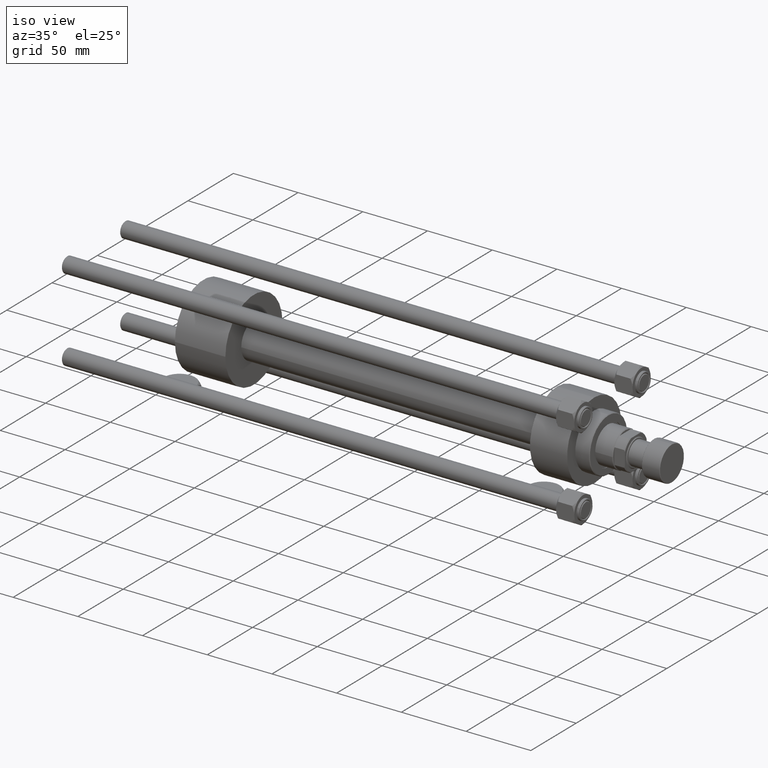
[diagram: clean part render]
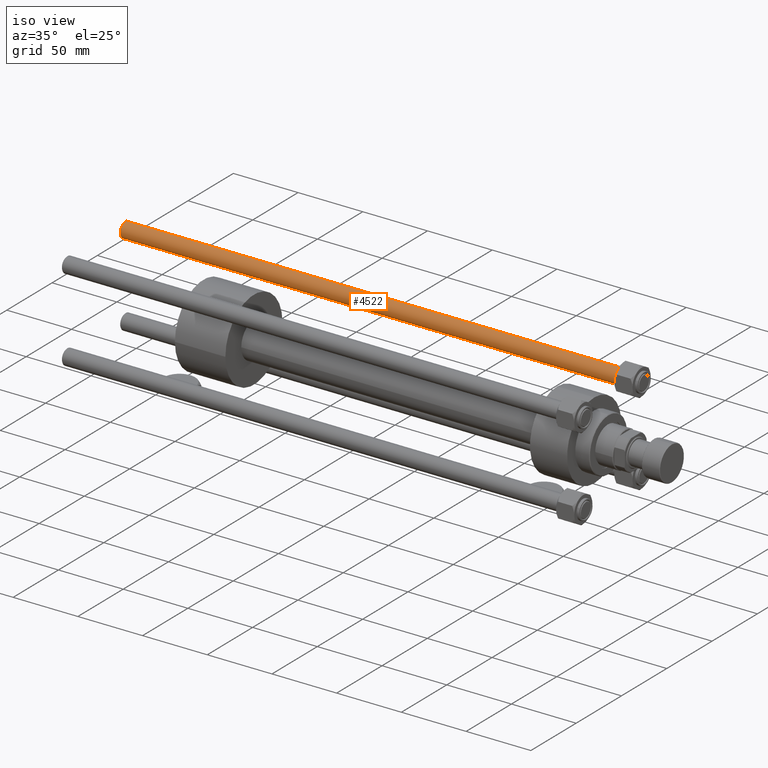
[diagram: same view with one face highlighted and labeled with its STEP entity id]
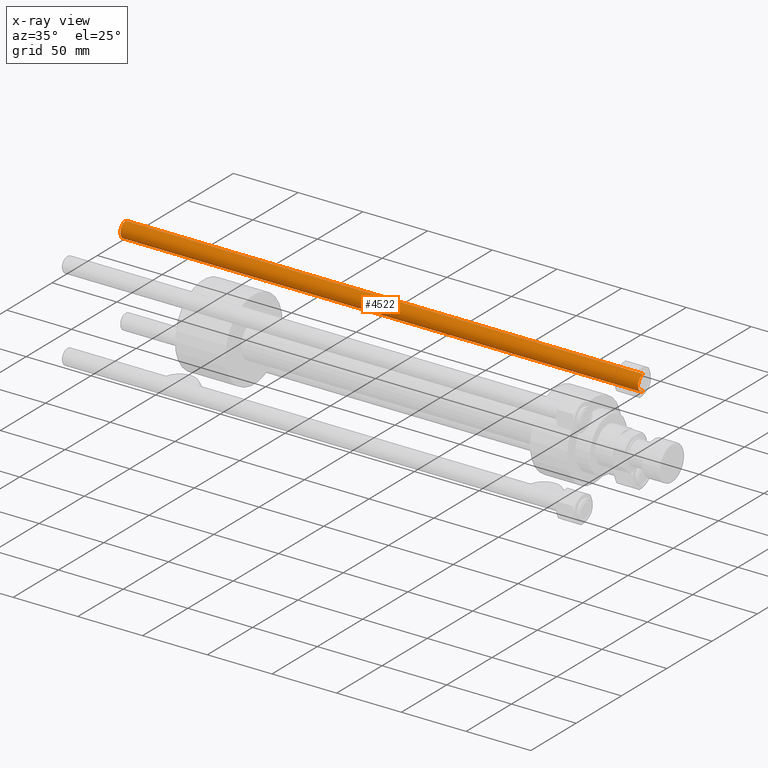
[diagram: x-ray of the same camera — body ghosted, the highlighted face saturated]
A machine part, iso view. The second image highlights one B-rep face of the part: STEP entity #4522.
The next image is the same camera in x-ray: the body ghosted, the highlighted face saturated — about 0% of this face is hidden behind the body in this view.
In plain terms, the highlighted cylindrical surface (edge-blend (fillet) strip) has radius 6 mm, axis along (-1, -0, -0).
Its self-contained STEP definition (entity closure, byte-faithful):
#1017 = CARTESIAN_POINT ( 'NONE',  ( 0.000000000000000000, 0.000000000000000000, 400.5000000000003411 ) ) ;
#2383 = DIRECTION ( 'NONE',  ( 1.000000000000000000, 0.000000000000000000, 0.000000000000000000 ) ) ;
#4025 = CARTESIAN_POINT ( 'NONE',  ( 0.000000000000000000, 0.000000000000000000, 401.0000000000000000 ) ) ;
#4069 = EDGE_CURVE ( 'NONE', #40860, #25406, #25054, .T. ) ;
#4522 = ADVANCED_FACE ( 'NONE', ( #43709 ), #24102, .T. ) ;
#7924 = DIRECTION ( 'NONE',  ( 1.000000000000000000, 0.000000000000000000, 0.000000000000000000 ) ) ;
#7996 = DIRECTION ( 'NONE',  ( -0.000000000000000000, -0.000000000000000000, -1.000000000000000000 ) ) ;
#8333 = DIRECTION ( 'NONE',  ( -0.000000000000000000, -0.000000000000000000, -1.000000000000000000 ) ) ;
#9400 = CARTESIAN_POINT ( 'NONE',  ( -6.000000000000000888, 0.000000000000000000, 400.5000000000003411 ) ) ;
#11364 = ORIENTED_EDGE ( 'NONE', *, *, #24665, .T. ) ;
#11539 = AXIS2_PLACEMENT_3D ( 'NONE', #1017, #12671, #7924 ) ;
#12671 = DIRECTION ( 'NONE',  ( 0.000000000000000000, 0.000000000000000000, -1.000000000000000000 ) ) ;
#14241 = ORIENTED_EDGE ( 'NONE', *, *, #51905, .F. ) ;
#15392 = DIRECTION ( 'NONE',  ( -1.000000000000000000, 0.000000000000000000, 0.000000000000000000 ) ) ;
#16140 = CARTESIAN_POINT ( 'NONE',  ( 6.000000000000000888, 7.347880794884119736E-16, 0.5000000000003335110 ) ) ;
#16255 = CARTESIAN_POINT ( 'NONE',  ( 6.000000000000000888, 7.347880794884119736E-16, 401.0000000000000000 ) ) ;
#17133 = CARTESIAN_POINT ( 'NONE',  ( -6.000000000000000888, 0.000000000000000000, 0.5000000000003335110 ) ) ;
#17280 = VERTEX_POINT ( 'NONE', #16140 ) ;
#22462 = CARTESIAN_POINT ( 'NONE',  ( 0.000000000000000000, 0.000000000000000000, 0.5000000000003335110 ) ) ;
#24102 = CYLINDRICAL_SURFACE ( 'NONE', #37744, 6.000000000000000888 ) ;
#24665 = EDGE_CURVE ( 'NONE', #25406, #31388, #24926, .T. ) ;
#24926 = LINE ( 'NONE', #29156, #36972 ) ;
#25054 = CIRCLE ( 'NONE', #11539, 6.000000000000000888 ) ;
#25081 = VECTOR ( 'NONE', #8333, 1000.000000000000000 ) ;
#25406 = VERTEX_POINT ( 'NONE', #9400 ) ;
#29156 = CARTESIAN_POINT ( 'NONE',  ( -6.000000000000000888, 0.000000000000000000, 401.0000000000000000 ) ) ;
#29278 = ORIENTED_EDGE ( 'NONE', *, *, #4069, .T. ) ;
#31388 = VERTEX_POINT ( 'NONE', #17133 ) ;
#33048 = EDGE_CURVE ( 'NONE', #31388, #17280, #47381, .T. ) ;
#36359 = LINE ( 'NONE', #16255, #25081 ) ;
#36972 = VECTOR ( 'NONE', #41850, 1000.000000000000000 ) ;
#37240 = AXIS2_PLACEMENT_3D ( 'NONE', #22462, #51313, #2383 ) ;
#37294 = EDGE_LOOP ( 'NONE', ( #14241, #29278, #11364, #51276 ) ) ;
#37744 = AXIS2_PLACEMENT_3D ( 'NONE', #4025, #7996, #15392 ) ;
#40860 = VERTEX_POINT ( 'NONE', #50720 ) ;
#41850 = DIRECTION ( 'NONE',  ( -0.000000000000000000, -0.000000000000000000, -1.000000000000000000 ) ) ;
#43709 = FACE_OUTER_BOUND ( 'NONE', #37294, .T. ) ;
#47381 = CIRCLE ( 'NONE', #37240, 6.000000000000000888 ) ;
#50720 = CARTESIAN_POINT ( 'NONE',  ( 6.000000000000000888, 7.347880794884119736E-16, 400.5000000000003411 ) ) ;
#51276 = ORIENTED_EDGE ( 'NONE', *, *, #33048, .T. ) ;
#51313 = DIRECTION ( 'NONE',  ( -0.000000000000000000, -0.000000000000000000, 1.000000000000000000 ) ) ;
#51905 = EDGE_CURVE ( 'NONE', #40860, #17280, #36359, .T. ) ;